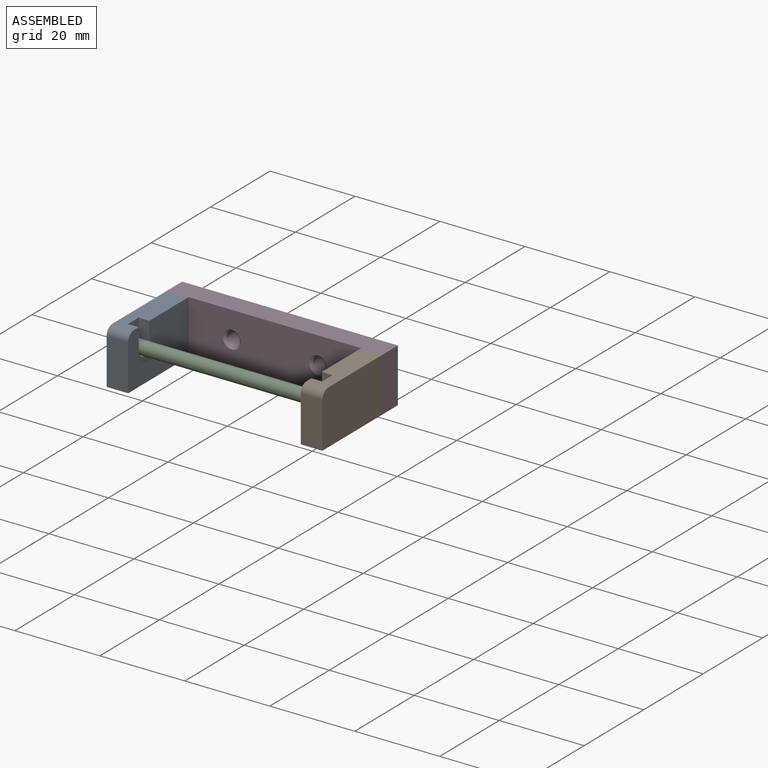
[diagram: assembled view]
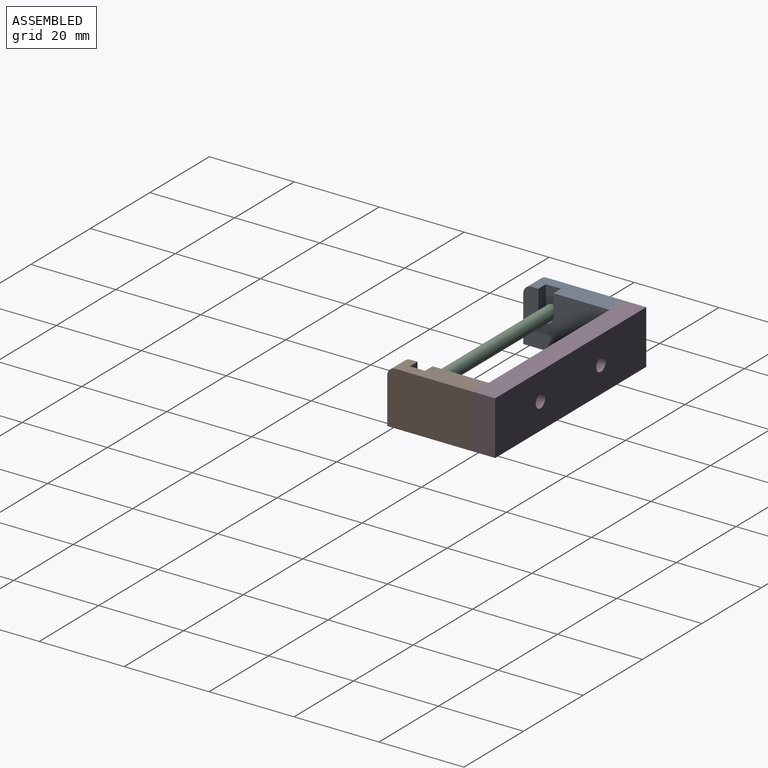
[diagram: assembled view, second angle]
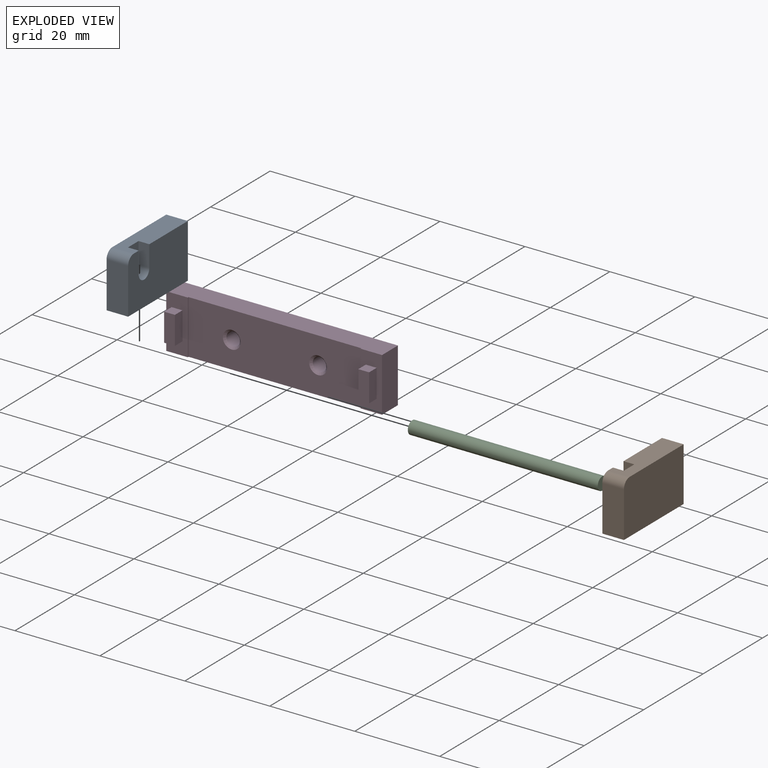
[diagram: exploded view]
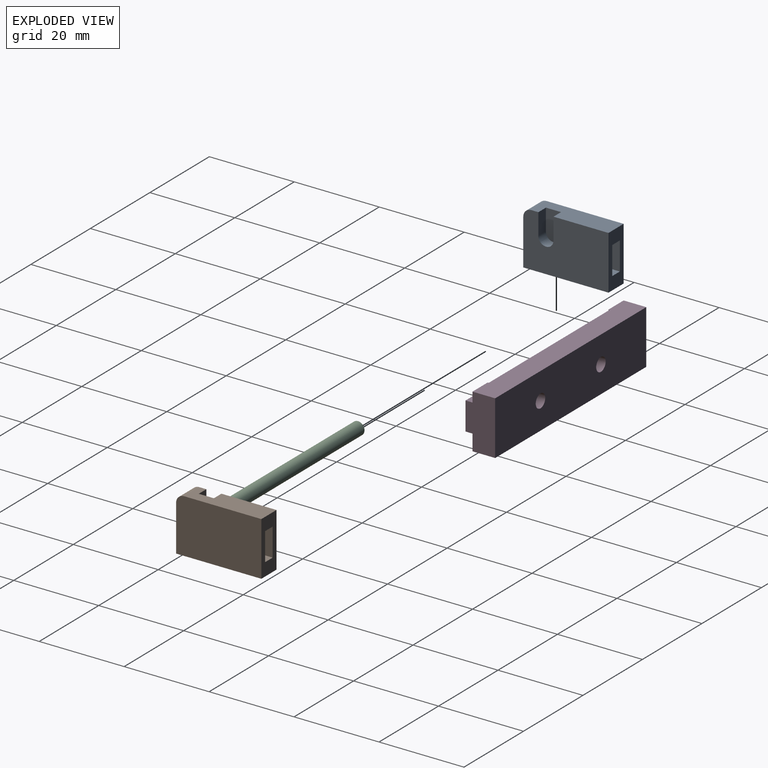
[diagram: exploded view, second angle]
ASSEMBLY  parts=4 mates=3
PART A: 16 faces, bbox 5.1x20.1x12.7 mm
  f0: plane 12.7x5.08mm, normal (0,1,0), area 47.7mm2, adj f1,f2,f3,f5,f10,f11,f12,f13
  f1: plane 18.16x5.08mm, normal (0,0,1), area 83.2mm2, adj f0,f3,f5,f6,f8,f9,f15
  f2: plane 20.07x5.08mm, normal (0,0,-1), area 101.9mm2, adj f0,f3,f4,f5
  f3: plane 20.07x12.7mm, normal (-1,0,0), area 254.1mm2, adj f0,f1,f2,f4,f15
  f4: plane 10.8x5.08mm, normal (0,-1,0), area 54.8mm2, adj f2,f3,f5,f15
  f5: plane 20.07x12.7mm, normal (1,0,0), area 231mm2, adj f0,f1,f2,f4,f6,f7,f8,f15
  f6: plane 5.08x2.54mm, normal (0,1,0), area 12.9mm2, adj f1,f5,f7,f9
  f7: cylinder r=1.78mm len=3.56mm, axis (1,0,0), area 14.2mm2, adj f5,f6,f8,f9
  f8: plane 5.08x2.54mm, normal (0,-1,0), area 12.9mm2, adj f1,f5,f7,f9
  f9: plane 6.86x3.56mm, normal (1,0,0), area 23mm2, adj f1,f6,f7,f8
  f10: plane 2.54x2.54mm, normal (0,0,1), area 6.5mm2, adj f0,f11,f13,f14
  f11: plane 6.6x2.54mm, normal (1,0,0), area 16.8mm2, adj f0,f10,f12,f14
  f12: plane 2.54x2.54mm, normal (0,0,-1), area 6.5mm2, adj f0,f11,f13,f14
  f13: plane 6.6x2.54mm, normal (-1,0,0), area 16.8mm2, adj f0,f10,f12,f14
  f14: plane 6.6x2.54mm, normal (0,1,0), area 16.8mm2, adj f10,f11,f12,f13
  f15: cylinder r=1.91mm len=5.08mm, axis (-1,0,0), area 15.2mm2, adj f1,f3,f4,f5
PART B: 16 faces, bbox 5.1x20.1x12.7 mm
  f0: plane 12.7x5.08mm, normal (0,1,0), area 47.7mm2, adj f6,f7,f8,f9,f10,f11,f12,f13
  f1: plane 6.86x3.55mm, normal (-1,0,0), area 23mm2, adj f2,f3,f4,f9
  f2: plane 5.08x2.54mm, normal (0,-1,0), area 12.9mm2, adj f1,f3,f8,f9
  f3: cylinder r=1.78mm len=3.55mm, axis (-1,0,0), area 14.2mm2, adj f1,f2,f4,f8
  f4: plane 5.08x2.54mm, normal (0,1,0), area 12.9mm2, adj f1,f3,f8,f9
  f5: plane 10.8x5.08mm, normal (0,-1,0), area 54.9mm2, adj f6,f7,f8,f15
  f6: plane 20.07x5.08mm, normal (0,0,-1), area 101.9mm2, adj f0,f5,f7,f8
  f7: plane 20.07x12.7mm, normal (1,0,0), area 254.1mm2, adj f0,f5,f6,f9,f15
  f8: plane 20.07x12.7mm, normal (-1,0,0), area 231mm2, adj f0,f2,f3,f4,f5,f6,f9,f15
  f9: plane 18.17x5.08mm, normal (0,0,1), area 83.3mm2, adj f0,f1,f2,f4,f7,f8,f15
  f10: plane 2.54x2.54mm, normal (0,0,1), area 6.5mm2, adj f0,f11,f13,f14
  f11: plane 6.6x2.54mm, normal (1,0,0), area 16.8mm2, adj f0,f10,f12,f14
  f12: plane 2.54x2.54mm, normal (0,0,-1), area 6.5mm2, adj f0,f11,f13,f14
  f13: plane 6.6x2.54mm, normal (-1,0,0), area 16.8mm2, adj f0,f10,f12,f14
  f14: plane 6.6x2.54mm, normal (0,1,0), area 16.8mm2, adj f10,f11,f12,f13
  f15: cylinder r=1.9mm len=5.08mm, axis (-1,0,0), area 15.2mm2, adj f5,f7,f8,f9
PART C: 3 faces, bbox 44.7x3x3 mm
  f0: cylinder r=1.52mm len=44.7mm, axis (1,0,0), area 428.1mm2, adj f1,f2
  f1: plane 3.05x3.05mm, normal (-1,0,0), area 7.3mm2, adj f0
  f2: plane 3.05x3.05mm, normal (1,0,0), area 7.3mm2, adj f0
PART D: 24 faces, bbox 50.8x7.9x12.7 mm
  f0: plane 12.7x5.08mm, normal (0,-1,0), area 47.7mm2, adj f3,f5,f6,f8,f10,f11,f12,f13
  f1: plane 40.64x12.7mm, normal (0,-1,0), area 488.5mm2, adj f3,f5,f7,f8,f22,f23
  f2: plane 50.8x12.7mm, normal (0,1,0), area 629.3mm2, adj f3,f4,f6,f8,f20,f21
  f3: plane 50.8x5.33mm, normal (0,0,-1), area 260.6mm2, adj f0,f1,f2,f4,f5,f6,f7,f9
  f4: plane 12.7x5.33mm, normal (1,0,0), area 67.7mm2, adj f2,f3,f8,f9
  f5: plane 12.7x0.25mm, normal (1,0,0), area 3.2mm2, adj f0,f1,f3,f8
  f6: plane 12.7x5.33mm, normal (-1,0,0), area 67.7mm2, adj f0,f2,f3,f8
  f7: plane 12.7x0.25mm, normal (-1,0,0), area 3.2mm2, adj f1,f3,f8,f9
  f8: plane 50.8x5.33mm, normal (0,0,1), area 260.6mm2, adj f0,f1,f2,f4,f5,f6,f7,f9
  f9: plane 12.7x5.08mm, normal (0,-1,0), area 47.7mm2, adj f3,f4,f7,f8,f15,f16,f17,f18
  f10: plane 2.54x2.54mm, normal (0,0,-1), area 6.5mm2, adj f0,f11,f13,f14
  f11: plane 6.6x2.54mm, normal (1,0,0), area 16.8mm2, adj f0,f10,f12,f14
  f12: plane 2.54x2.54mm, normal (0,0,1), area 6.5mm2, adj f0,f11,f13,f14
  f13: plane 6.6x2.54mm, normal (-1,0,0), area 16.8mm2, adj f0,f10,f12,f14
  f14: plane 6.6x2.54mm, normal (0,-1,0), area 16.8mm2, adj f10,f11,f12,f13
  f15: plane 2.54x2.54mm, normal (0,0,-1), area 6.5mm2, adj f9,f16,f18,f19
  f16: plane 6.6x2.54mm, normal (1,0,0), area 16.8mm2, adj f9,f15,f17,f19
  f17: plane 2.54x2.54mm, normal (0,0,1), area 6.5mm2, adj f9,f16,f18,f19
  f18: plane 6.6x2.54mm, normal (-1,0,0), area 16.8mm2, adj f9,f15,f17,f19
  f19: plane 6.6x2.54mm, normal (0,-1,0), area 16.8mm2, adj f15,f16,f17,f18
  f20: cylinder r=1.59mm len=4.57mm, axis (0,-1,0), area 45.6mm2, adj f2,f22
  f21: cylinder r=1.59mm len=4.57mm, axis (0,-1,0), area 45.6mm2, adj f2,f23
  f22: cone r=1.59mm half-angle=45deg, axis (0,-1,0), area 8.3mm2, adj f1,f20
  f23: cone r=1.59mm half-angle=45deg, axis (0,-1,0), area 8.3mm2, adj f1,f21
PLACE A t=(-4.22,5.12,-2.12)mm
PLACE B t=(-4.22,5.12,-2.12)mm
PLACE C t=(-4.11,5.07,-9.85)mm
PLACE D t=(-4.22,5.12,-2.12)mm fixed
MATE revolute C.f0 <-> A.f7  axis (-1,0,0) through (-25.2,-14.95,5.5)mm
MATE fastened A.f14 <-> D.f14  axis (0,1,0) through (-25.7,-2.76,4.23)mm
MATE fastened B.f0 <-> D.f9  axis (0,1,0) through (20.02,-0.22,4.23)mm
